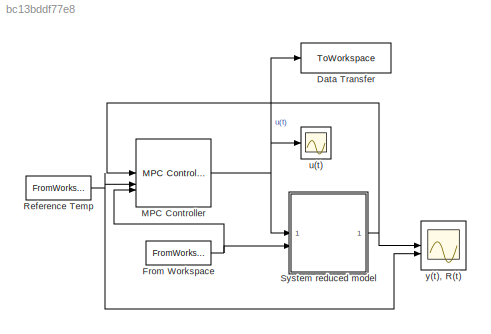
MODEL slx_bc13bddf77e8
KIND model
CONFIG AbsTol = auto
CONFIG EnableMultiTasking = off
CONFIG FixedStep = auto
CONFIG MaxStep = auto
CONFIG MinStep = auto
CONFIG RelTol = 1e-3
CONFIG SampleTimeConstraint = Unconstrained
CONFIG SolverName = VariableStepAuto
CONFIG StartTime = 0.0
CONFIG StopTime = t_ref(end)
BLOCK [ToWorkspace] Data Transfer
  FixptAsFi = on
  MaxDataPoints = inf
  SampleTime = -1
  SaveFormat = Timeseries
  VariableName = Qh
BLOCK [FromWorkspace] From Workspace
  VariableName = disturbances
BLOCK [Reference] MPC Controller  REF=mpclib/MPC Controller  (lib defined in mdl_ae329e0e0455)
  SCDEnableBlockLinearizationSpecification = on
  SourceBlock = mpclib/MPC Controller
  SourceType = MPC
BLOCK [FromWorkspace] Reference Temp
  SampleTime = 0.25
  VariableName = refrence
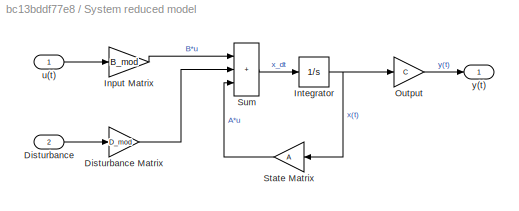
BLOCK [SubSystem] System reduced model
BLOCK [Inport] System reduced model/Disturbance
  Port = 2
BLOCK [Gain] System reduced model/Disturbance Matrix
  Gain = D_mod
  Multiplication = Matrix(K*u)
BLOCK [Gain] System reduced model/Input Matrix
  Gain = B_mod
  Multiplication = Matrix(K*u)
BLOCK [Integrator] System reduced model/Integrator
BLOCK [Gain] System reduced model/Output
  Gain = C
  Multiplication = Matrix(K*u)
BLOCK [Gain] System reduced model/State Matrix
  Gain = A
  Multiplication = Matrix(K*u)
  NameLocation = top
BLOCK [Sum] System reduced model/Sum
  IconShape = rectangular
  Inputs = |+++
BLOCK [Inport] System reduced model/u(t)
BLOCK [Outport] System reduced model/y(t)
BLOCK [Scope] u(t)
  Floating = off
  NumInputPorts = 1
  ScopeSpecificationString = Simulink.scopes.TimeScopeBlockCfg('CurrentConfiguration', extmgr.ConfigurationSet(extmgr.Configuration('Core','General UI',true),extmgr.Configuration('Core','Source UI',true),extmgr.Configuration('Sources','WiredSimulink',true,'DataLoggingVariableName','ScopeData1'),extmgr.Configuration('Visuals','Time Domain',true,'SerializedDisplays',{struct('MinYLimReal','-556.52636','MaxYLimReal','5008.73724',...<+1772ch>
BLOCK [Scope] y(t), R(t)
  Floating = off
  NumInputPorts = 2
  ScopeSpecificationString = Simulink.scopes.TimeScopeBlockCfg('CurrentConfiguration', extmgr.ConfigurationSet(extmgr.Configuration('Core','General UI',true),extmgr.Configuration('Core','Source UI',true),extmgr.Configuration('Sources','WiredSimulink',true),extmgr.Configuration('Visuals','Time Domain',true,'SerializedDisplays',{struct('MinYLimReal','-2.59668','MaxYLimReal','23.37016','YLabelReal','','MinYLimMag','0.00000','Max...<+1482ch>
NET From Workspace:1 -> MPC Controller:3, System reduced model:2
NET MPC Controller:1 -> Data Transfer:1, System reduced model:1, u(t):1
NET Reference Temp:1 -> MPC Controller:2, y(t), R(t):2
LINE System reduced model/Disturbance Matrix:1 -> System reduced model/Sum:2
LINE System reduced model/Disturbance:1 -> System reduced model/Disturbance Matrix:1
LINE System reduced model/Input Matrix:1 -> System reduced model/Sum:1
NET System reduced model/Integrator:1 -> System reduced model/Output:1, System reduced model/State Matrix:1
LINE System reduced model/Output:1 -> System reduced model/y(t):1
LINE System reduced model/State Matrix:1 -> System reduced model/Sum:3
LINE System reduced model/Sum:1 -> System reduced model/Integrator:1
LINE System reduced model/u(t):1 -> System reduced model/Input Matrix:1
NET System reduced model:1 -> MPC Controller:1, y(t), R(t):1
note: NET lines group one-source signal fan-out (src -> all destinations, sorted); 1:1 wires keep LINE
